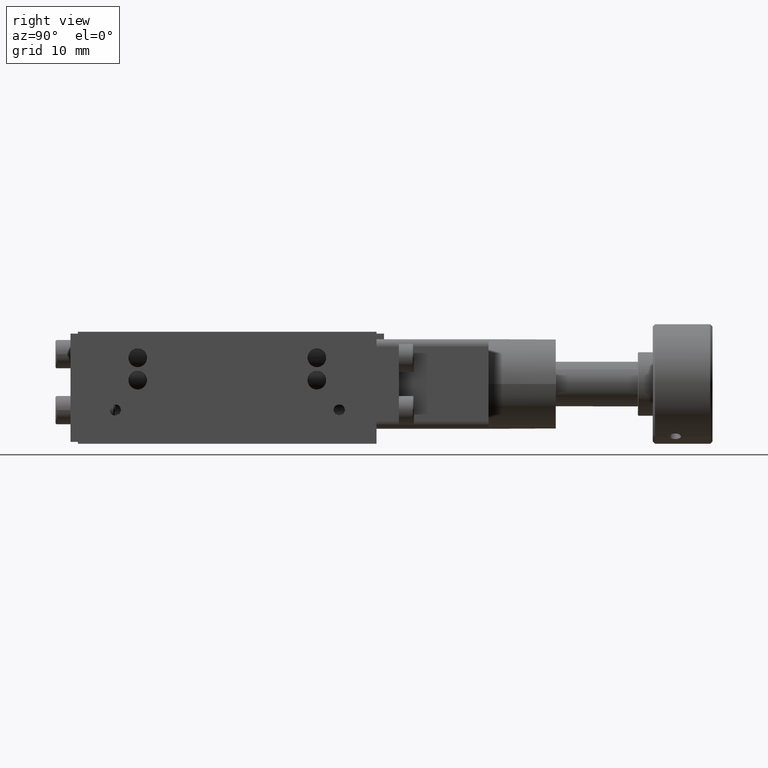
[diagram: clean part render]
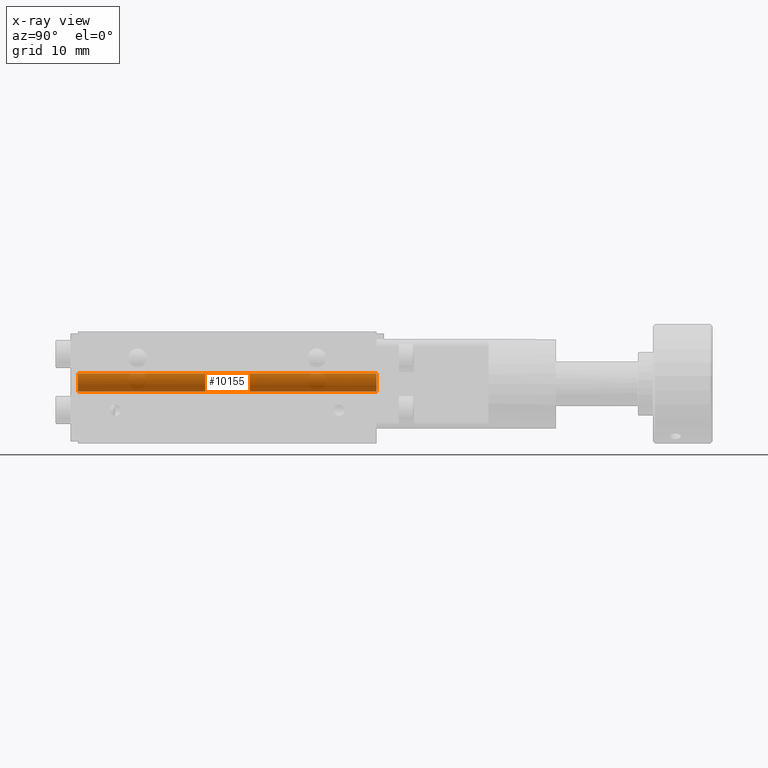
[diagram: x-ray — body ghosted, one internal face saturated and labeled with its STEP entity id]
A machine part, right view, then the same camera in x-ray: the body is ghosted and one INTERNAL B-rep face — a face not visible from any outside direction — is saturated and labeled: STEP entity #10155.
In plain terms, the highlighted cylindrical surface (edge-blend (fillet) strip) has radius 1.5 mm, axis along (0, -1, 0).
Its self-contained STEP definition (entity closure, byte-faithful):
#351=CYLINDRICAL_SURFACE('',#10839,1.5);
#1180=FACE_OUTER_BOUND('',#1740,.T.);
#1740=EDGE_LOOP('',(#8248,#8249,#8250,#8251,#8252));
#2612=LINE('',#16553,#3477);
#2613=LINE('',#16555,#3478);
#3477=VECTOR('',#12750,10.);
#3478=VECTOR('',#12753,10.);
#3812=CIRCLE('',#10653,1.5);
#3814=CIRCLE('',#10656,1.5);
#3872=CIRCLE('',#10758,1.5);
#4527=VERTEX_POINT('',#16013);
#4528=VERTEX_POINT('',#16014);
#4530=VERTEX_POINT('',#16020);
#4626=VERTEX_POINT('',#16302);
#4627=VERTEX_POINT('',#16304);
#5676=EDGE_CURVE('',#4527,#4528,#3812,.T.);
#5681=EDGE_CURVE('',#4530,#4527,#3814,.T.);
#5822=EDGE_CURVE('',#4626,#4627,#3872,.T.);
#5960=EDGE_CURVE('',#4530,#4626,#2612,.T.);
#5961=EDGE_CURVE('',#4528,#4627,#2613,.T.);
#8248=ORIENTED_EDGE('',*,*,#5961,.T.);
#8249=ORIENTED_EDGE('',*,*,#5822,.F.);
#8250=ORIENTED_EDGE('',*,*,#5960,.F.);
#8251=ORIENTED_EDGE('',*,*,#5681,.T.);
#8252=ORIENTED_EDGE('',*,*,#5676,.T.);
#10155=ADVANCED_FACE('',(#1180),#351,.T.);
#10653=AXIS2_PLACEMENT_3D('',#16015,#12193,#12194);
#10656=AXIS2_PLACEMENT_3D('',#16024,#12202,#12203);
#10758=AXIS2_PLACEMENT_3D('',#16305,#12489,#12490);
#10839=AXIS2_PLACEMENT_3D('',#16556,#12754,#12755);
#12193=DIRECTION('center_axis',(4.36863685382267E-16,-1.,1.50815553649942E-46));
#12194=DIRECTION('ref_axis',(1.,2.22044604925031E-16,1.44512342045322E-31));
#12202=DIRECTION('center_axis',(4.36863685382267E-16,-1.,1.50815553649942E-46));
#12203=DIRECTION('ref_axis',(1.,2.22044604925031E-16,1.44512342045322E-31));
#12489=DIRECTION('center_axis',(4.36863685382267E-16,-1.,1.50815553649942E-46));
#12490=DIRECTION('ref_axis',(1.,2.22044604925031E-16,1.44512342045322E-31));
#12750=DIRECTION('',(4.36863685382267E-16,-1.,1.50815553649942E-46));
#12753=DIRECTION('',(4.36863685382267E-16,-1.,1.50815553649942E-46));
#12754=DIRECTION('center_axis',(4.36863685382267E-16,-1.,1.50815553649942E-46));
#12755=DIRECTION('ref_axis',(1.,2.22044604925031E-16,1.44512342045322E-31));
#16013=CARTESIAN_POINT('',(-0.999999999999977,40.,3.));
#16014=CARTESIAN_POINT('',(-1.30000176398115,40.,3.9000023519701));
#16015=CARTESIAN_POINT('Origin',(-2.49999999999998,40.,3.));
#16020=CARTESIAN_POINT('',(-2.49999999999998,40.,1.5));
#16024=CARTESIAN_POINT('Origin',(-2.49999999999998,40.,3.));
#16302=CARTESIAN_POINT('',(-2.49999999999997,3.5527136788005E-14,1.5));
#16304=CARTESIAN_POINT('',(-1.30000176398114,-2.23333519407782E-14,3.90000235197011));
#16305=CARTESIAN_POINT('Origin',(-2.49999999999997,-2.2526689113189E-14,
3.));
#16553=CARTESIAN_POINT('',(-2.49999999999997,20.,1.5));
#16555=CARTESIAN_POINT('',(-1.30000176398115,20.,3.90000235197011));
#16556=CARTESIAN_POINT('Origin',(-2.49999999999997,20.,3.));